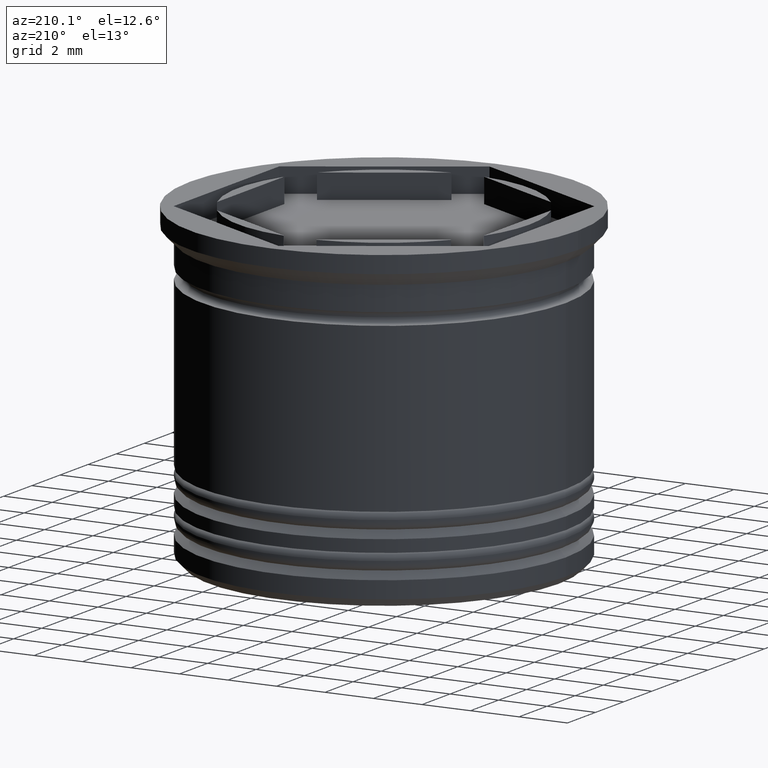
[diagram: clean part render]
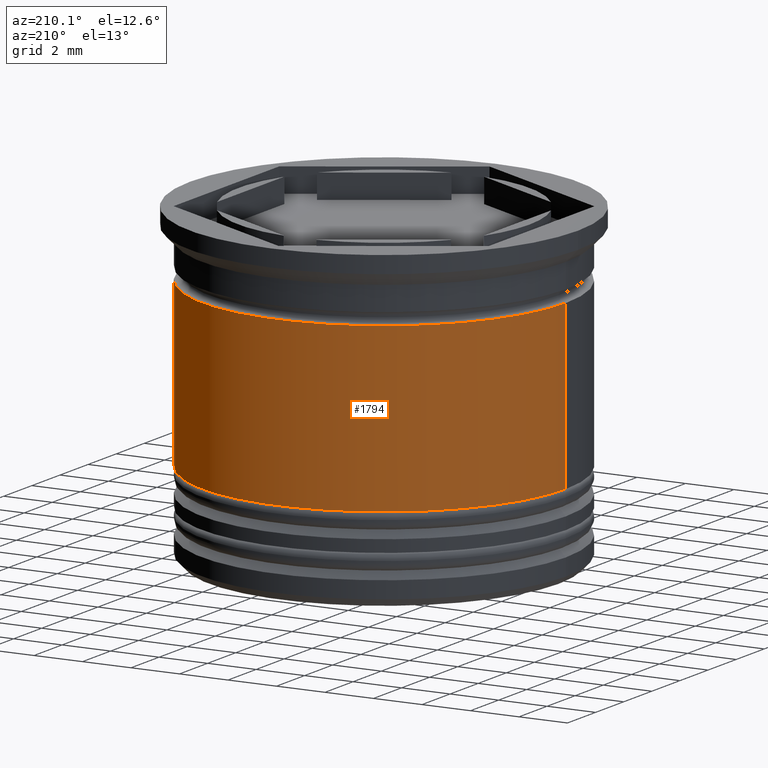
[diagram: same view with one face highlighted and labeled with its STEP entity id]
A machine part, auxiliary view. The second image highlights one B-rep face of the part: STEP entity #1794.
In plain terms, the highlighted cylindrical surface (partial cylindrical patch) has radius 7.5 mm, axis along (-0, -0, 1).
Its self-contained STEP definition (entity closure, byte-faithful):
#8 = AXIS2_PLACEMENT_3D ( 'NONE', #417, #716, #129 ) ;
#33 = EDGE_LOOP ( 'NONE', ( #1655, #272, #238, #1785 ) ) ;
#43 = CARTESIAN_POINT ( 'NONE',  ( 0.000000000000000000, 0.000000000000000000, -9.500000000000000000 ) ) ;
#67 = VECTOR ( 'NONE', #910, 1000.000000000000000 ) ;
#79 = FACE_OUTER_BOUND ( 'NONE', #33, .T. ) ;
#110 = CARTESIAN_POINT ( 'NONE',  ( 0.000000000000000000, 0.000000000000000000, 0.000000000000000000 ) ) ;
#129 = DIRECTION ( 'NONE',  ( 1.000000000000000000, 0.000000000000000000, 0.000000000000000000 ) ) ;
#216 = VERTEX_POINT ( 'NONE', #978 ) ;
#238 = ORIENTED_EDGE ( 'NONE', *, *, #1964, .F. ) ;
#272 = ORIENTED_EDGE ( 'NONE', *, *, #1894, .T. ) ;
#324 = CIRCLE ( 'NONE', #889, 7.500000000000001776 ) ;
#417 = CARTESIAN_POINT ( 'NONE',  ( 0.000000000000000000, 0.000000000000000000, -2.700000000000000178 ) ) ;
#587 = LINE ( 'NONE', #611, #67 ) ;
#611 = CARTESIAN_POINT ( 'NONE',  ( -7.500000000000000000, 9.184850993605147944E-16, 0.000000000000000000 ) ) ;
#638 = CARTESIAN_POINT ( 'NONE',  ( 7.499999999999998224, 0.000000000000000000, -2.700000000000000178 ) ) ;
#716 = DIRECTION ( 'NONE',  ( -0.000000000000000000, -0.000000000000000000, 1.000000000000000000 ) ) ;
#726 = VERTEX_POINT ( 'NONE', #1663 ) ;
#800 = DIRECTION ( 'NONE',  ( -0.000000000000000000, -0.000000000000000000, 1.000000000000000000 ) ) ;
#801 = CARTESIAN_POINT ( 'NONE',  ( -7.500000000000001776, 9.184850993605149917E-16, -9.500000000000000000 ) ) ;
#889 = AXIS2_PLACEMENT_3D ( 'NONE', #43, #800, #1244 ) ;
#910 = DIRECTION ( 'NONE',  ( -0.000000000000000000, -0.000000000000000000, 1.000000000000000000 ) ) ;
#978 = CARTESIAN_POINT ( 'NONE',  ( 7.500000000000001776, 0.000000000000000000, -9.500000000000000000 ) ) ;
#1025 = VERTEX_POINT ( 'NONE', #801 ) ;
#1132 = LINE ( 'NONE', #1296, #1669 ) ;
#1151 = DIRECTION ( 'NONE',  ( -0.000000000000000000, -0.000000000000000000, 1.000000000000000000 ) ) ;
#1167 = DIRECTION ( 'NONE',  ( -0.000000000000000000, -0.000000000000000000, 1.000000000000000000 ) ) ;
#1244 = DIRECTION ( 'NONE',  ( 1.000000000000000000, 0.000000000000000000, 0.000000000000000000 ) ) ;
#1286 = AXIS2_PLACEMENT_3D ( 'NONE', #110, #1167, #1477 ) ;
#1296 = CARTESIAN_POINT ( 'NONE',  ( 7.500000000000000000, 0.000000000000000000, 0.000000000000000000 ) ) ;
#1379 = EDGE_CURVE ( 'NONE', #216, #1684, #1132, .T. ) ;
#1477 = DIRECTION ( 'NONE',  ( 1.000000000000000000, 0.000000000000000000, 0.000000000000000000 ) ) ;
#1655 = ORIENTED_EDGE ( 'NONE', *, *, #1693, .T. ) ;
#1663 = CARTESIAN_POINT ( 'NONE',  ( -7.499999999999998224, 9.184850993605145972E-16, -2.700000000000000178 ) ) ;
#1669 = VECTOR ( 'NONE', #1151, 1000.000000000000000 ) ;
#1684 = VERTEX_POINT ( 'NONE', #638 ) ;
#1693 = EDGE_CURVE ( 'NONE', #216, #1025, #324, .T. ) ;
#1742 = CIRCLE ( 'NONE', #8, 7.499999999999998224 ) ;
#1775 = CYLINDRICAL_SURFACE ( 'NONE', #1286, 7.500000000000000000 ) ;
#1785 = ORIENTED_EDGE ( 'NONE', *, *, #1379, .F. ) ;
#1794 = ADVANCED_FACE ( 'NONE', ( #79 ), #1775, .T. ) ;
#1894 = EDGE_CURVE ( 'NONE', #1025, #726, #587, .T. ) ;
#1964 = EDGE_CURVE ( 'NONE', #1684, #726, #1742, .T. ) ;